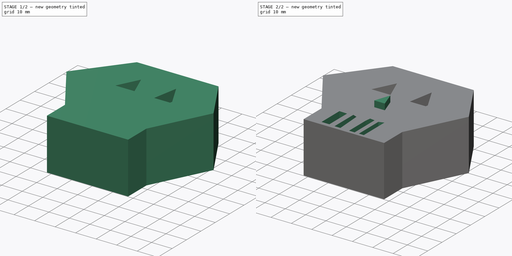
[diagram: build sequence overview — one tinted view per stage of 2, left to right]
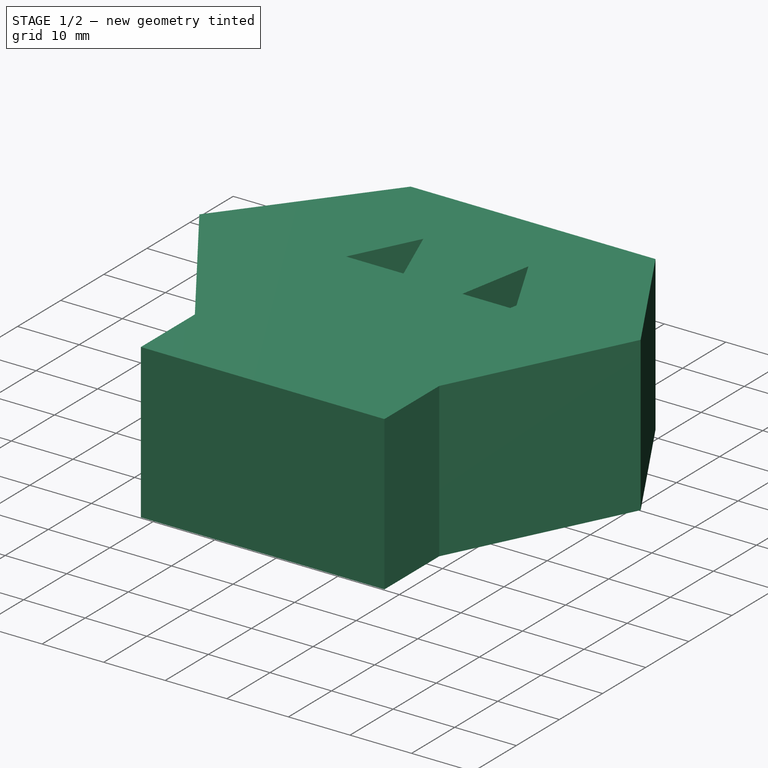
[diagram: stage 1 of 2 — iso view after this stage's code; geometry added in this stage tinted green]
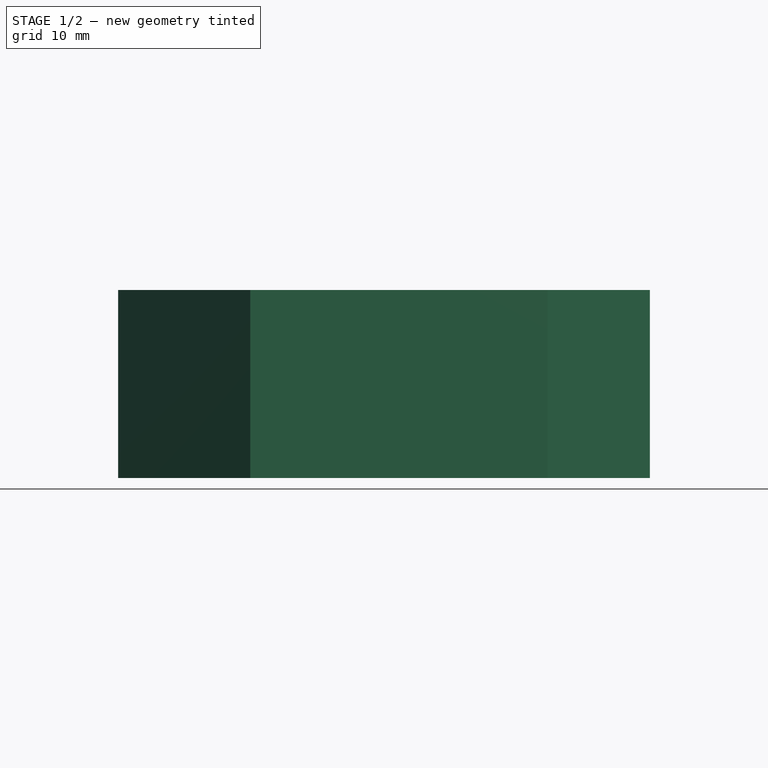
[diagram: stage 1 of 2 — front view after this stage's code; geometry added in this stage tinted green]
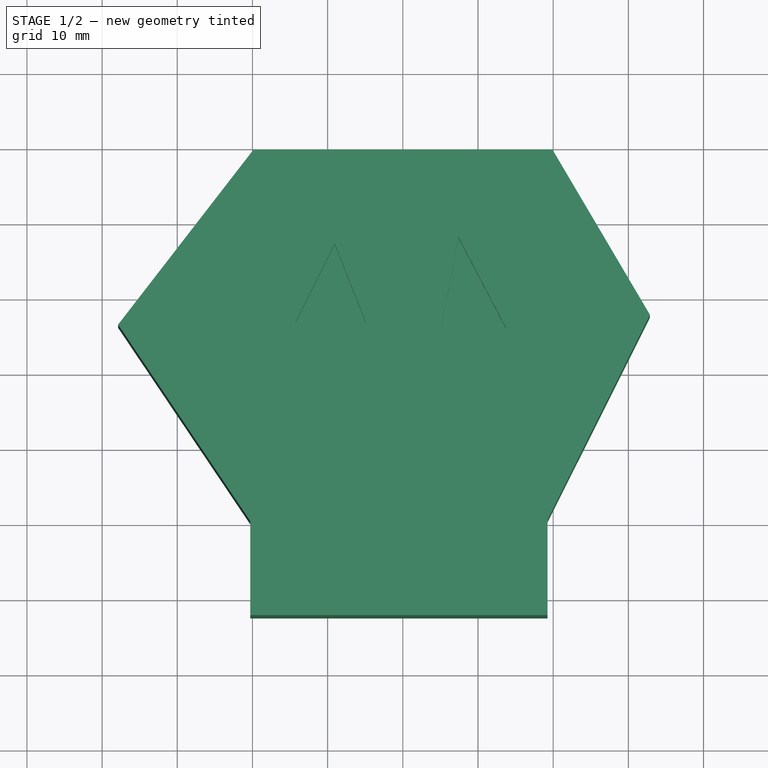
[diagram: stage 1 of 2 — top view after this stage's code; geometry added in this stage tinted green]
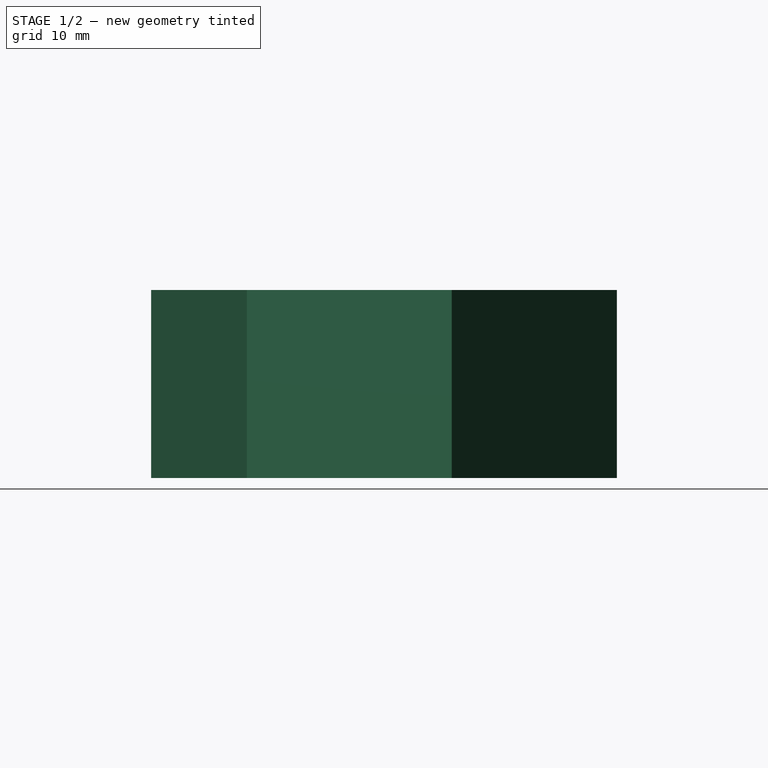
[diagram: stage 1 of 2 — right view after this stage's code; geometry added in this stage tinted green]
FCSTD DOCUMENT  (FreeCAD 1.0R39319 (Git))
Label: ojt1_t17r01_skull
License: All rights reserved
LicenseURL: https://en.wikipedia.org/wiki/All_rights_reserved
objects: Sketcher::SketchObject×4, PartDesign::Pad×2, PartDesign::Pocket×2, PartDesign::Body×1
note: 21 computed .brp shape members not serialized (recipe doc carries the construction recipe); baked Part::Feature solids carry a one-line shape summary decoded from their .brp

FEATURE [Sketcher::SketchObject] Sketch
  ArcFitTolerance = 1e-06
  AttachmentSupport = -> [XY_Plane]
  FullyConstrained = false
  MakeInternals = false
  MapMode = 5
  sketch-geometry (8):
    g0: LineSegment StartX=-19.8575 StartY=39.564 StartZ=0 EndX=19.9027 EndY=39.564 EndZ=0
    g1: LineSegment StartX=19.9027 StartY=39.564 StartZ=0 EndX=32.8633 EndY=17.5971 EndZ=0
    g2: LineSegment StartX=32.8633 StartY=17.5971 StartZ=0 EndX=19.2437 EndY=-9.64196 EndZ=0
    g3: LineSegment StartX=19.2437 StartY=-9.64196 StartZ=0 EndX=19.2437 EndY=-22.3828 EndZ=0
    g4: LineSegment StartX=19.2437 StartY=-22.3828 StartZ=0 EndX=-20.2968 EndY=-22.3828 EndZ=0
    g5: LineSegment StartX=-20.2968 StartY=-22.3828 StartZ=0 EndX=-20.2968 EndY=-9.86163 EndZ=0
    g6: LineSegment StartX=-20.2968 StartY=-9.86163 StartZ=0 EndX=-37.8704 EndY=16.2791 EndZ=0
    g7: LineSegment StartX=-37.8704 StartY=16.2791 StartZ=0 EndX=-19.8575 EndY=39.564 EndZ=0
  constraints (12):
    c: Horizontal(g0)
    c: Coincident(g0,g1)
    c: Coincident(g1,g2)
    c: Coincident(g2,g3)
    c: Vertical(g3)
    c: Coincident(g3,g4)
    c: Horizontal(g4)
    c: Coincident(g4,g5)
    c: Vertical(g5)
    c: Coincident(g5,g6)
    c: Coincident(g6,g7)
    c: Coincident(g7,g0)
FEATURE [PartDesign::Pad] Pad
  Direction = (0,0,1)
  Length = 25
  Length2 = 10
  Profile = -> Sketch
  ReferenceAxis = -> Sketch [N_Axis]
  Refine = true
  Suppressed = false
  Type = 0
FEATURE [Sketcher::SketchObject] Sketch001
  ArcFitTolerance = 1e-06
  AttachmentSupport = -> [Pad]
  FullyConstrained = false
  MakeInternals = false
  MapMode = 5
  Placement = pos=(0,0,25) rot=(0,0,1;0rad)
  sketch-geometry (6):
    g0: LineSegment StartX=-14.2724 StartY=16.6046 StartZ=0 EndX=-4.94406 EndY=16.6046 EndZ=0
    g1: LineSegment StartX=-4.94406 StartY=16.6046 StartZ=0 EndX=-9.04854 EndY=27.0524 EndZ=0
    g2: LineSegment StartX=-9.04854 StartY=27.0524 StartZ=0 EndX=-14.2724 EndY=16.6046 EndZ=0
    g3: LineSegment StartX=5.13056 StartY=15.8583 StartZ=0 EndX=13.7127 EndY=15.8583 EndZ=0
    g4: LineSegment StartX=13.7127 StartY=15.8583 StartZ=0 EndX=7.36937 EndY=27.9852 EndZ=0
    g5: LineSegment StartX=7.36937 StartY=27.9852 StartZ=0 EndX=5.13056 EndY=15.8583 EndZ=0
  constraints (8):
    c: Horizontal(g0)
    c: Coincident(g0,g1)
    c: Coincident(g1,g2)
    c: Coincident(g2,g0)
    c: Horizontal(g3)
    c: Coincident(g3,g4)
    c: Coincident(g4,g5)
    c: Coincident(g5,g3)
FEATURE [PartDesign::Pocket] Pocket
  BaseFeature = -> Pad
  Direction = (0,0,-1)
  Length = 5
  Length2 = 5
  Profile = -> Sketch001
  ReferenceAxis = -> Sketch001 [N_Axis]
  Refine = true
  Suppressed = false
  Type = 0
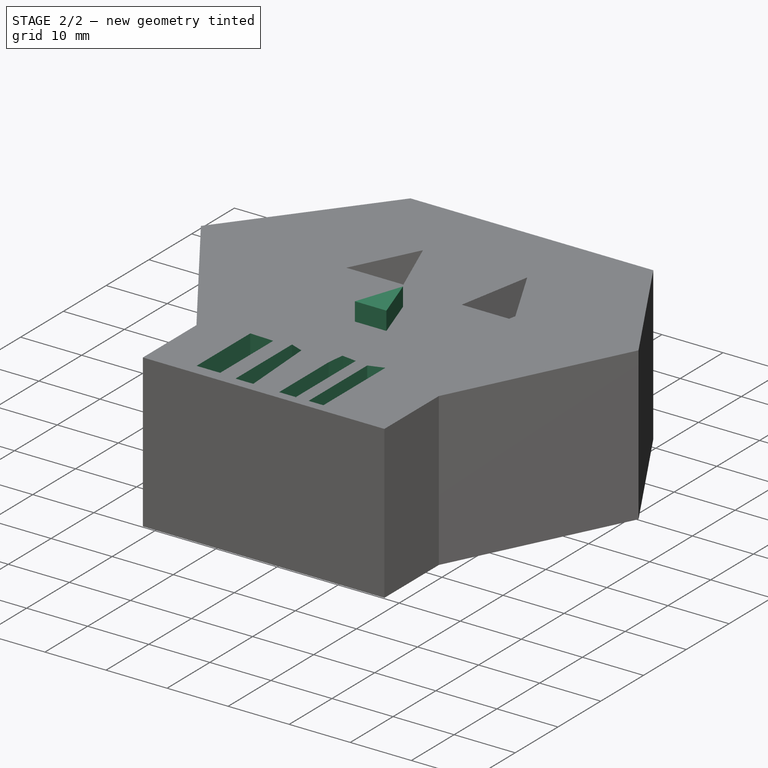
[diagram: stage 2 of 2 — iso view after this stage's code; geometry added in this stage tinted green]
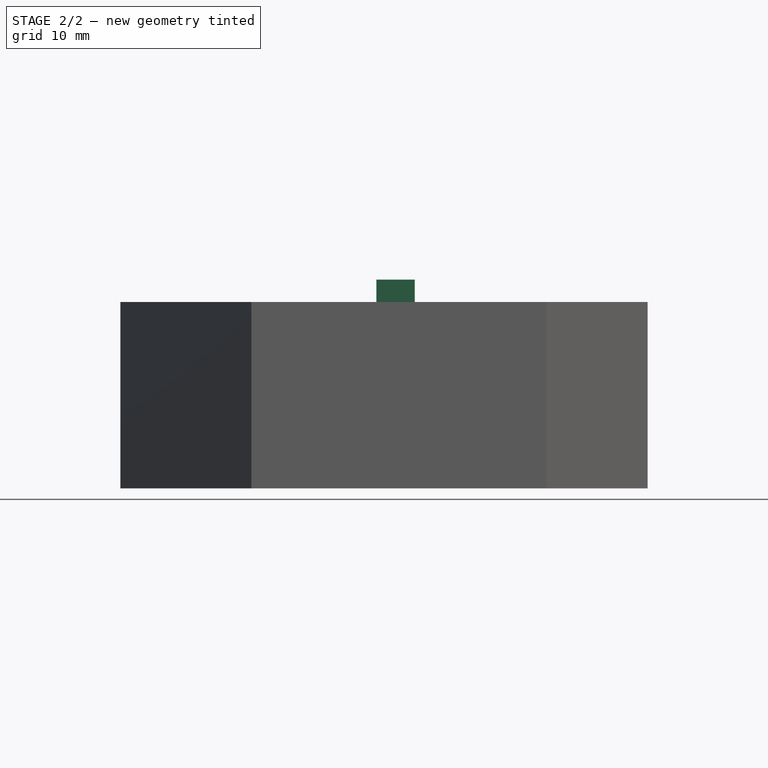
[diagram: stage 2 of 2 — front view after this stage's code; geometry added in this stage tinted green]
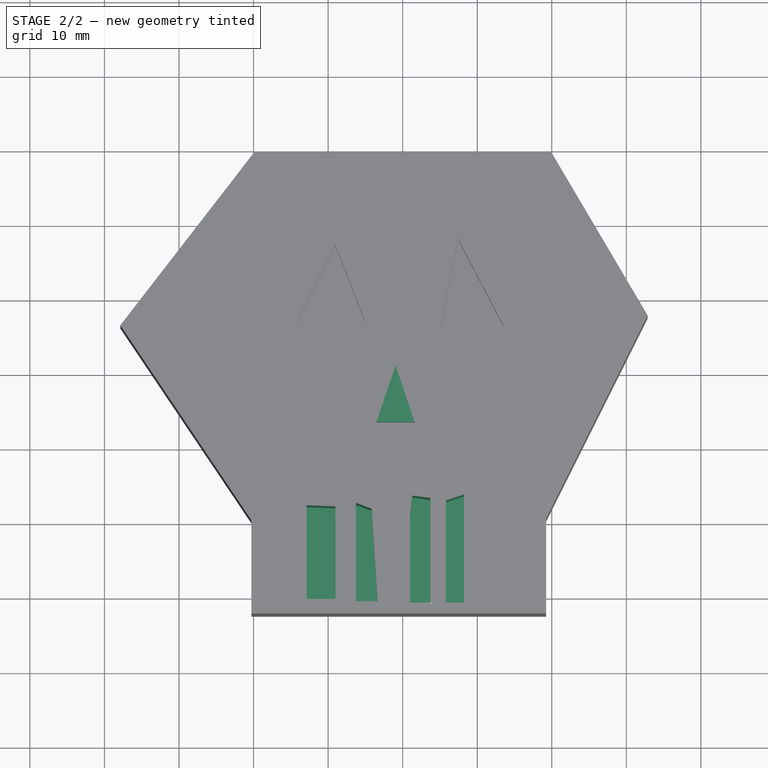
[diagram: stage 2 of 2 — top view after this stage's code; geometry added in this stage tinted green]
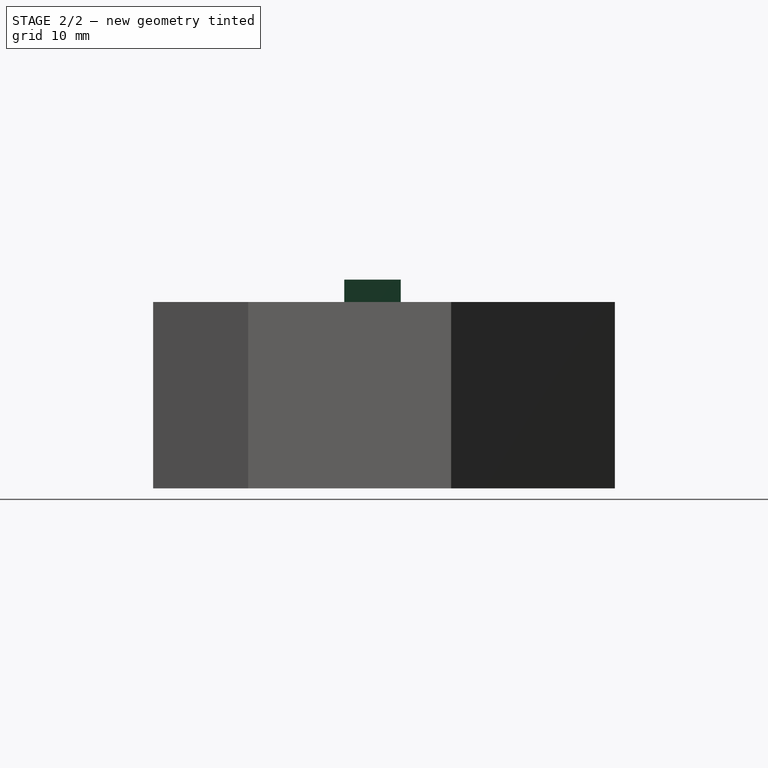
[diagram: stage 2 of 2 — right view after this stage's code; geometry added in this stage tinted green]
FEATURE [Sketcher::SketchObject] Sketch002
  ArcFitTolerance = 1e-06
  AttachmentSupport = -> [Pocket]
  FullyConstrained = false
  MakeInternals = false
  MapMode = 5
  Placement = pos=(0,0,25) rot=(0,0,1;0rad)
  sketch-geometry (3):
    g0: LineSegment StartX=-0.952642 StartY=10.8299 StartZ=0 EndX=-3.5305 EndY=3.25741 EndZ=0
    g1: LineSegment StartX=-3.5305 StartY=3.25741 StartZ=0 EndX=1.62521 EndY=3.25741 EndZ=0
    g2: LineSegment StartX=1.62521 StartY=3.25741 StartZ=0 EndX=-0.952642 EndY=10.8299 EndZ=0
  constraints (4):
    c: Coincident(g0,g1)
    c: Horizontal(g1)
    c: Coincident(g1,g2)
    c: Coincident(g2,g0)
FEATURE [PartDesign::Pad] Pad001
  BaseFeature = -> Pocket
  Direction = (0,0,1)
  Length = 3
  Length2 = 10
  Profile = -> Sketch002
  ReferenceAxis = -> Sketch002 [N_Axis]
  Refine = true
  Suppressed = false
  Type = 0
FEATURE [Sketcher::SketchObject] Sketch003
  ArcFitTolerance = 1e-06
  AttachmentSupport = -> [Pad001]
  FullyConstrained = false
  MakeInternals = false
  MapMode = 5
  Placement = pos=(0,0,25) rot=(0,0,1;0rad)
  sketch-geometry (18):
    g0: LineSegment StartX=-4.175 StartY=-8.34279 StartZ=0 EndX=-3.36942 EndY=-20.7487 EndZ=0
    g1: LineSegment StartX=-3.36942 StartY=-20.7487 StartZ=0 EndX=-6.26951 EndY=-20.7487 EndZ=0
    g2: LineSegment StartX=-6.26951 StartY=-20.7487 StartZ=0 EndX=-6.26951 EndY=-7.53721 EndZ=0
    g3: LineSegment StartX=-6.26951 StartY=-7.53721 StartZ=0 EndX=-4.175 EndY=-8.34279 EndZ=0
    g4: LineSegment StartX=-12.8753 StartY=-7.85945 StartZ=0 EndX=-9.00848 EndY=-8.02056 EndZ=0
    g5: LineSegment StartX=-9.00848 StartY=-8.02056 StartZ=0 EndX=-9.00848 EndY=-20.4265 EndZ=0
    g6: LineSegment StartX=-9.00848 StartY=-20.4265 StartZ=0 EndX=-12.8753 EndY=-20.4265 EndZ=0
    g7: LineSegment StartX=-12.8753 StartY=-20.4265 StartZ=0 EndX=-12.8753 EndY=-7.85945 EndZ=0
    g8: LineSegment StartX=0.980712 StartY=-9.30949 StartZ=0 EndX=0.980712 EndY=-20.9098 EndZ=0
    g9: LineSegment StartX=0.980712 StartY=-20.9098 StartZ=0 EndX=3.8808 EndY=-20.9098 EndZ=0
    g10: LineSegment StartX=3.8808 StartY=-20.9098 StartZ=0 EndX=3.71969 EndY=-21.071 EndZ=0
    g11: LineSegment StartX=3.71969 StartY=-21.071 StartZ=0 EndX=3.71969 EndY=-6.89275 EndZ=0
    g12: LineSegment StartX=3.71969 StartY=-6.89275 StartZ=0 EndX=1.30295 EndY=-6.57052 EndZ=0
    g13: LineSegment StartX=1.30295 StartY=-6.57052 StartZ=0 EndX=0.980712 EndY=-9.30949 EndZ=0
    g14: LineSegment StartX=5.81419 StartY=-7.21498 StartZ=0 EndX=5.81419 EndY=-20.9098 EndZ=0
    g15: LineSegment StartX=5.81419 StartY=-20.9098 StartZ=0 EndX=8.23093 EndY=-20.9098 EndZ=0
    g16: LineSegment StartX=8.23093 StartY=-20.9098 StartZ=0 EndX=8.23093 EndY=-6.4094 EndZ=0
    g17: LineSegment StartX=8.23093 StartY=-6.4094 StartZ=0 EndX=5.81419 EndY=-7.21498 EndZ=0
  constraints (29):
    c: Coincident(g0,g1)
    c: Horizontal(g1)
    c: Coincident(g1,g2)
    c: Vertical(g2)
    c: Coincident(g2,g3)
    c: Coincident(g3,g0)
    c: Coincident(g4,g5)
    c: Vertical(g5)
    c: Coincident(g5,g6)
    c: Horizontal(g6)
    c: Coincident(g6,g7)
    c: Coincident(g7,g4)
    c: Vertical(g7)
    c: Vertical(g8)
    c: Coincident(g8,g9)
    c: Horizontal(g9)
    c: Coincident(g9,g10)
    c: Coincident(g10,g11)
    c: Vertical(g11)
    c: Coincident(g11,g12)
    c: Coincident(g12,g13)
    c: Coincident(g13,g8)
    c: Vertical(g14)
    c: Coincident(g14,g15)
    c: Horizontal(g15)
    c: Coincident(g15,g16)
    c: Vertical(g16)
    c: Coincident(g16,g17)
    c: Coincident(g17,g14)
FEATURE [PartDesign::Pocket] Pocket001
  BaseFeature = -> Pad001
  Direction = (0,0,-1)
  Length = 16
  Length2 = 5
  Profile = -> Sketch003
  ReferenceAxis = -> Sketch003 [N_Axis]
  Refine = true
  Suppressed = false
  Type = 0
FEATURE [PartDesign::Body] Body
  AllowCompound = false
  Group = -> [Sketch,Pad,Sketch001,Pocket,Sketch002,Pad001,Sketch003,Pocket001]
  Origin = -> Origin
  Tip = -> Pocket001
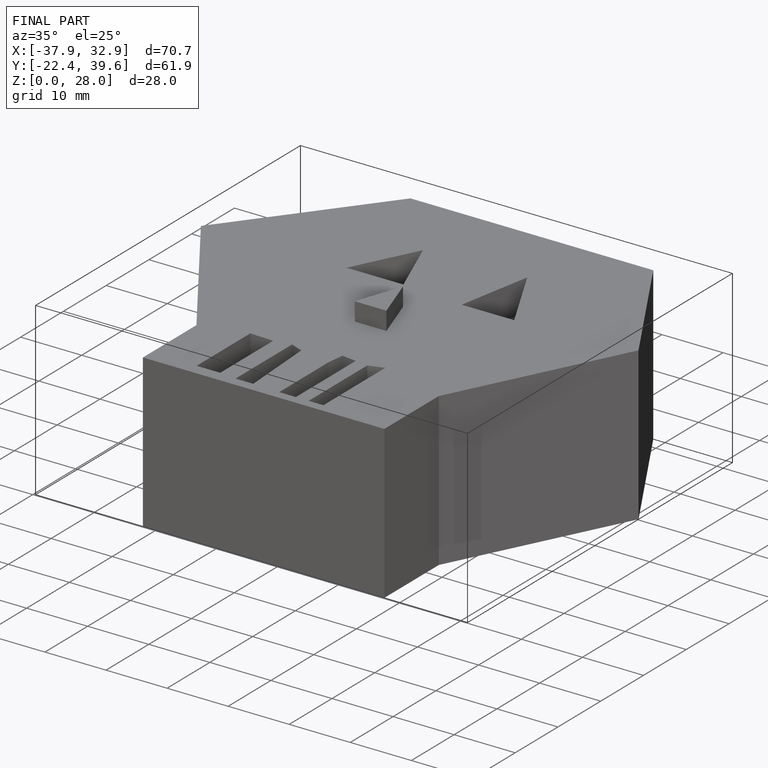
[diagram: finished part — iso view with bounding-box wireframe]
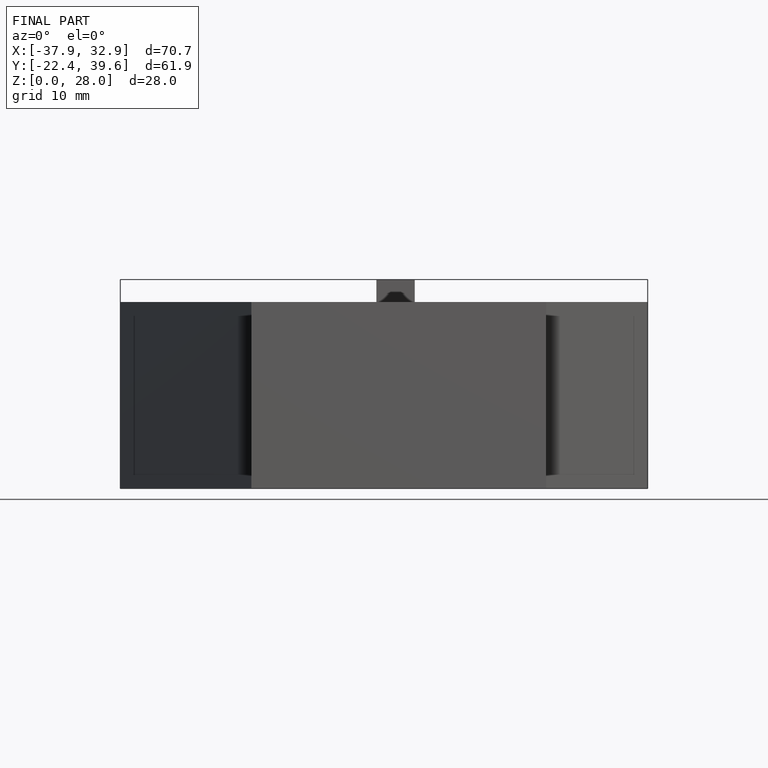
[diagram: finished part — front view with bounding-box wireframe]
